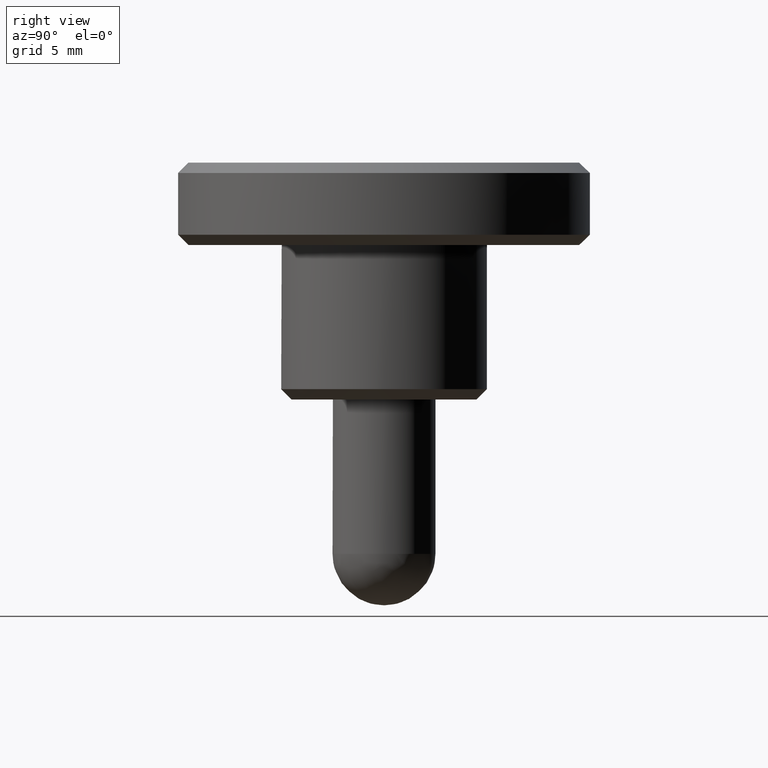
[diagram: clean part render]
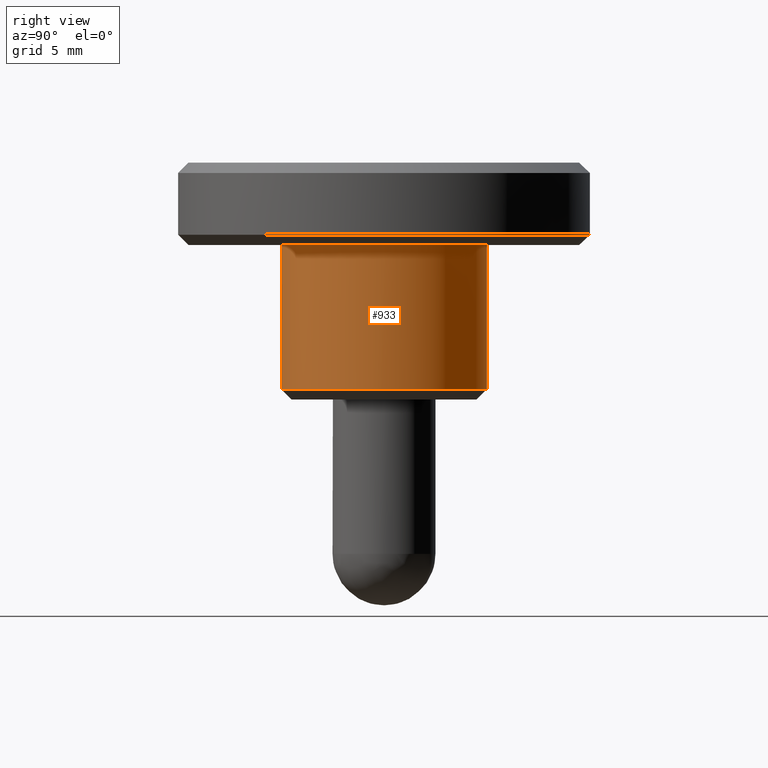
[diagram: same view with one face highlighted and labeled with its STEP entity id]
A machine part, right view. The second image highlights one B-rep face of the part: STEP entity #933.
In plain terms, the highlighted face is a freeform B-spline surface patch.
Its self-contained STEP definition (entity closure, byte-faithful):
#500=CARTESIAN_POINT('',(0.620639326116273,-4.961331154728281,0.499999999999940));
#501=VERTEX_POINT('',#500);
#558=CARTESIAN_POINT('',(-0.043630800128547,4.999809631702245,0.499999999999251));
#559=VERTEX_POINT('',#558);
#565=CARTESIAN_POINT('',(5.0,0.0,0.499999999999945));
#566=VERTEX_POINT('',#565);
#567=CARTESIAN_POINT('',(5.0,0.0,0.499999999999945));
#568=CARTESIAN_POINT('',(5.000000000000001,5.000000000000001,0.499999999999945));
#569=CARTESIAN_POINT('',(0.0,5.0,0.499999999999945));
#570=CARTESIAN_POINT('',(-0.021815815368240,5.000000000000001,0.499999999999945));
#571=CARTESIAN_POINT('',(-0.043630800128547,4.999809631702246,0.499999999999251));
#579=(BOUNDED_CURVE()B_SPLINE_CURVE(2,(#567,#568,#569,#570,#571),.UNSPECIFIED.,.F.,.U.)B_SPLINE_CURVE_WITH_KNOTS((3,2,3),(0.500000000000000,0.750000000000000,0.751539828195666),.UNSPECIFIED.)CURVE()GEOMETRIC_REPRESENTATION_ITEM()RATIONAL_B_SPLINE_CURVE((1.0,0.707106781186548,1.0,0.998195979053407,0.996414181165367))REPRESENTATION_ITEM(''));
#580=EDGE_CURVE('',#566,#559,#579,.T.);
#582=CARTESIAN_POINT('',(0.620639326116273,-4.961331154728281,0.499999999999940));
#583=CARTESIAN_POINT('',(5.000000000000001,-4.413494227686669,0.499999999999945));
#584=CARTESIAN_POINT('',(5.0,0.0,0.499999999999945));
#592=(BOUNDED_CURVE()B_SPLINE_CURVE(2,(#582,#583,#584),.UNSPECIFIED.,.F.,.U.)B_SPLINE_CURVE_WITH_KNOTS((3,3),(0.271473882450313,0.500000000000000),.UNSPECIFIED.)CURVE()GEOMETRIC_REPRESENTATION_ITEM()RATIONAL_B_SPLINE_CURVE((0.954005520552827,0.732264999391723,1.0))REPRESENTATION_ITEM(''));
#593=EDGE_CURVE('',#501,#566,#592,.T.);
#867=CARTESIAN_POINT('',(0.620640010399146,-4.961331069127693,0.324999999999943));
#868=CARTESIAN_POINT('',(5.038664152512223,-4.408656290666105,0.324999999999943));
#869=CARTESIAN_POINT('',(4.999809615320855,0.043632677491869,0.324999999999944));
#870=CARTESIAN_POINT('',(4.956176937828985,5.043442292812725,0.324999999999944));
#871=CARTESIAN_POINT('',(-0.043632677491869,4.999809615320855,0.324999999999944));
#872=CARTESIAN_POINT('',(0.620640010399146,-4.961331069127693,7.679375000000002));
#873=CARTESIAN_POINT('',(5.038664152512223,-4.408656290666105,7.679375000000002));
#874=CARTESIAN_POINT('',(4.999809615320855,0.043632677491869,7.679375000000003));
#875=CARTESIAN_POINT('',(4.956176937828985,5.043442292812725,7.679375000000004));
#876=CARTESIAN_POINT('',(-0.043632677491869,4.999809615320855,7.679375000000003));
#884=(BOUNDED_SURFACE()B_SPLINE_SURFACE(2,1,((#867,#872),(#868,#873),(#869,#874),(#870,#875),(#871,#876)),.UNSPECIFIED.,.F.,.F.,.U.)B_SPLINE_SURFACE_WITH_KNOTS((3,2,3),(2,2),(0.0,7.621529547664946,15.905800795126851),(0.0,7.354375000000061),.UNSPECIFIED.)GEOMETRIC_REPRESENTATION_ITEM()RATIONAL_B_SPLINE_SURFACE(((0.956886118190660,0.956886118190660),(0.730538238691624,0.730538238691624),(1.0,1.0),(0.707106781186548,0.707106781186548),(1.0,1.0)))REPRESENTATION_ITEM('')SURFACE());
#885=ORIENTED_EDGE('',*,*,#593,.T.);
#886=ORIENTED_EDGE('',*,*,#580,.T.);
#887=CARTESIAN_POINT('',(-0.043628661551656,4.999809650364210,7.500000000000000));
#888=VERTEX_POINT('',#887);
#889=CARTESIAN_POINT('',(-0.043630800128547,4.999809631702245,0.499999999999251));
#890=CARTESIAN_POINT('',(-0.043628661551656,4.999809650364210,7.500000000000000));
#891=QUASI_UNIFORM_CURVE('',1,(#889,#890),.UNSPECIFIED.,.F.,.U.);
#892=EDGE_CURVE('',#559,#888,#891,.T.);
#893=ORIENTED_EDGE('',*,*,#892,.T.);
#894=CARTESIAN_POINT('',(5.0,0.0,7.500000000000000));
#895=VERTEX_POINT('',#894);
#896=CARTESIAN_POINT('',(-0.043628661551656,4.999809650364210,7.500000000000000));
#897=CARTESIAN_POINT('',(-0.021814746018728,5.0,7.500000000000000));
#898=CARTESIAN_POINT('',(0.0,5.0,7.500000000000000));
#899=CARTESIAN_POINT('',(5.000000000000001,5.000000000000001,7.500000000000000));
#900=CARTESIAN_POINT('',(5.0,0.0,7.500000000000000));
#908=(BOUNDED_CURVE()B_SPLINE_CURVE(2,(#896,#897,#898,#899,#900),.UNSPECIFIED.,.F.,.U.)B_SPLINE_CURVE_WITH_KNOTS((3,2,3),(0.248460247146196,0.250000000000000,0.500000000000000),.UNSPECIFIED.)CURVE()GEOMETRIC_REPRESENTATION_ITEM()RATIONAL_B_SPLINE_CURVE((0.996414355527691,0.998196067321889,1.0,0.707106781186548,1.0))REPRESENTATION_ITEM(''));
#909=EDGE_CURVE('',#888,#895,#908,.T.);
#910=ORIENTED_EDGE('',*,*,#909,.T.);
#911=CARTESIAN_POINT('',(0.620634546352657,-4.961331752649010,7.500000000000000));
#912=VERTEX_POINT('',#911);
#913=CARTESIAN_POINT('',(5.0,0.0,7.500000000000000));
#914=CARTESIAN_POINT('',(5.0,-4.413497899335222,7.500000000000000));
#915=CARTESIAN_POINT('',(0.620634546352657,-4.961331752649010,7.500000000000000));
#923=(BOUNDED_CURVE()B_SPLINE_CURVE(2,(#913,#914,#915),.UNSPECIFIED.,.F.,.U.)B_SPLINE_CURVE_WITH_KNOTS((3,3),(0.500000000000000,0.728526256763575),.UNSPECIFIED.)CURVE()GEOMETRIC_REPRESENTATION_ITEM()RATIONAL_B_SPLINE_CURVE((1.0,0.732264836292508,0.954005790713464))REPRESENTATION_ITEM(''));
#924=EDGE_CURVE('',#895,#912,#923,.T.);
#925=ORIENTED_EDGE('',*,*,#924,.T.);
#926=CARTESIAN_POINT('',(0.620639326116273,-4.961331154728281,0.499999999999940));
#927=CARTESIAN_POINT('',(0.620634546352657,-4.961331752649010,7.500000000000000));
#928=QUASI_UNIFORM_CURVE('',1,(#926,#927),.UNSPECIFIED.,.F.,.U.);
#929=EDGE_CURVE('',#501,#912,#928,.T.);
#930=ORIENTED_EDGE('',*,*,#929,.F.);
#931=EDGE_LOOP('',(#885,#886,#893,#910,#925,#930));
#932=FACE_OUTER_BOUND('',#931,.T.);
#933=ADVANCED_FACE('',(#932),#884,.T.);